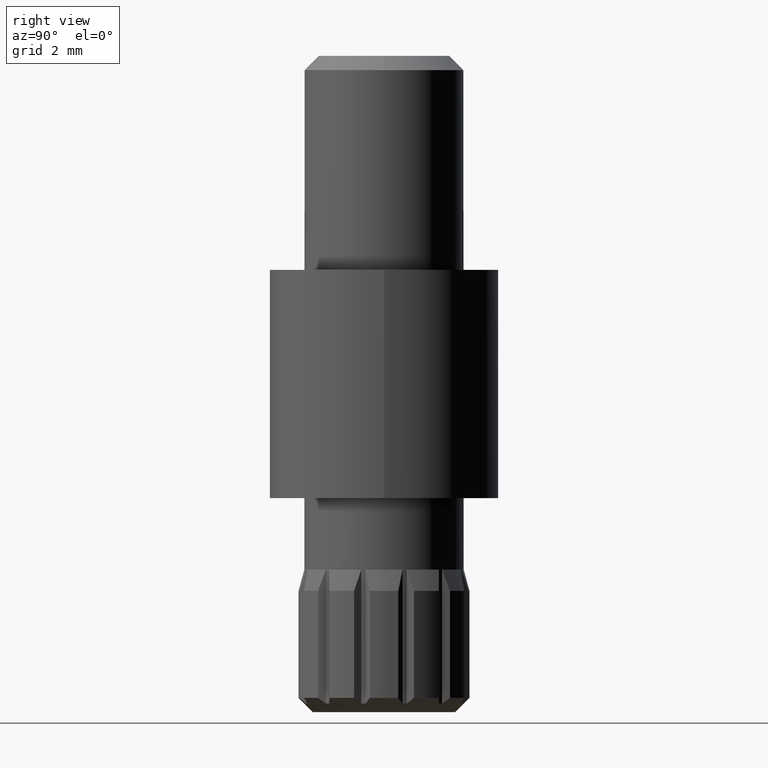
[diagram: clean part render]
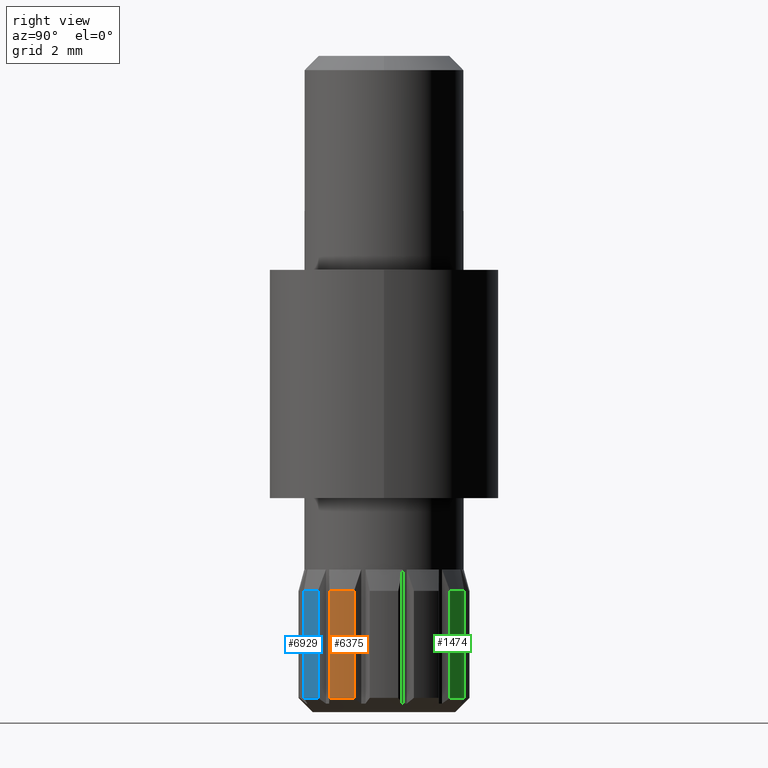
[diagram: same view with three faces highlighted in distinct colors, each labeled with its STEP entity id]
A machine part, right view with three faces highlighted in distinct colors.
Their STEP definitions:

[orange] entity #6375 — the highlighted cylindrical surface (partial cylindrical patch) has radius 3 mm, axis along (0, 0, -1).
#319 = AXIS2_PLACEMENT_3D ( 'NONE', #12026, #1212, #1081 ) ;
#549 = EDGE_CURVE ( 'NONE', #8342, #8471, #11567, .T. ) ;
#855 = CARTESIAN_POINT ( 'NONE',  ( 2.811737691489895496, -1.046007243882698390, 4.250000000000000000 ) ) ;
#950 = AXIS2_PLACEMENT_3D ( 'NONE', #3037, #5021, #6015 ) ;
#1081 = DIRECTION ( 'NONE',  ( -1.000000000000000000, 0.000000000000000000, 0.000000000000000000 ) ) ;
#1212 = DIRECTION ( 'NONE',  ( -0.000000000000000000, -0.000000000000000000, -1.000000000000000000 ) ) ;
#1364 = DIRECTION ( 'NONE',  ( 0.000000000000000000, 0.000000000000000000, -1.000000000000000000 ) ) ;
#1702 = ORIENTED_EDGE ( 'NONE', *, *, #549, .T. ) ;
#2190 = CYLINDRICAL_SURFACE ( 'NONE', #10973, 3.000000000000000444 ) ;
#2592 = VECTOR ( 'NONE', #1364, 1000.000000000000000 ) ;
#3037 = CARTESIAN_POINT ( 'NONE',  ( 0.000000000000000000, 0.000000000000000000, 4.250000000000000000 ) ) ;
#3440 = EDGE_CURVE ( 'NONE', #8342, #10463, #3991, .T. ) ;
#3869 = EDGE_CURVE ( 'NONE', #10463, #10141, #12542, .T. ) ;
#3935 = DIRECTION ( 'NONE',  ( -1.000000000000000000, 0.000000000000000000, 0.000000000000000000 ) ) ;
#3991 = LINE ( 'NONE', #7115, #8147 ) ;
#4181 = CARTESIAN_POINT ( 'NONE',  ( 2.311737691489891056, -1.912032647667133878, 0.4999999999999998890 ) ) ;
#4668 = ORIENTED_EDGE ( 'NONE', *, *, #3440, .F. ) ;
#4909 = CARTESIAN_POINT ( 'NONE',  ( 0.000000000000000000, 0.000000000000000000, 5.000000000000000000 ) ) ;
#5007 = CARTESIAN_POINT ( 'NONE',  ( 2.311737691489891944, -1.912032647667134766, 4.250000000000000000 ) ) ;
#5021 = DIRECTION ( 'NONE',  ( -0.000000000000000000, -0.000000000000000000, -1.000000000000000000 ) ) ;
#6015 = DIRECTION ( 'NONE',  ( -1.000000000000000000, 0.000000000000000000, 0.000000000000000000 ) ) ;
#6375 = ADVANCED_FACE ( 'NONE', ( #8039 ), #2190, .T. ) ;
#6383 = EDGE_LOOP ( 'NONE', ( #1702, #12623, #8981, #4668 ) ) ;
#7115 = CARTESIAN_POINT ( 'NONE',  ( 2.811737691489895496, -1.046007243882697946, 5.000000000000000000 ) ) ;
#7192 = EDGE_CURVE ( 'NONE', #8471, #10141, #12458, .T. ) ;
#7240 = CARTESIAN_POINT ( 'NONE',  ( 2.311737691489891944, -1.912032647667134544, 5.000000000000000000 ) ) ;
#8039 = FACE_OUTER_BOUND ( 'NONE', #6383, .T. ) ;
#8147 = VECTOR ( 'NONE', #10117, 1000.000000000000000 ) ;
#8342 = VERTEX_POINT ( 'NONE', #855 ) ;
#8471 = VERTEX_POINT ( 'NONE', #5007 ) ;
#8981 = ORIENTED_EDGE ( 'NONE', *, *, #3869, .F. ) ;
#9819 = CARTESIAN_POINT ( 'NONE',  ( 2.811737691489895052, -1.046007243882697058, 0.4999999999999998890 ) ) ;
#10117 = DIRECTION ( 'NONE',  ( 0.000000000000000000, 0.000000000000000000, -1.000000000000000000 ) ) ;
#10141 = VERTEX_POINT ( 'NONE', #4181 ) ;
#10463 = VERTEX_POINT ( 'NONE', #9819 ) ;
#10973 = AXIS2_PLACEMENT_3D ( 'NONE', #4909, #12666, #3935 ) ;
#11567 = CIRCLE ( 'NONE', #950, 3.000000000000000888 ) ;
#12026 = CARTESIAN_POINT ( 'NONE',  ( 0.000000000000000000, 0.000000000000000000, 0.4999999999999998890 ) ) ;
#12458 = LINE ( 'NONE', #7240, #2592 ) ;
#12542 = CIRCLE ( 'NONE', #319, 3.000000000000000000 ) ;
#12623 = ORIENTED_EDGE ( 'NONE', *, *, #7192, .T. ) ;
#12666 = DIRECTION ( 'NONE',  ( 0.000000000000000000, 0.000000000000000000, -1.000000000000000000 ) ) ;

[blue] entity #6929 — the highlighted cylindrical surface (partial cylindrical patch) has radius 3 mm, axis along (0, 0, -1).
#175 = EDGE_CURVE ( 'NONE', #11277, #3410, #6033, .T. ) ;
#268 = ORIENTED_EDGE ( 'NONE', *, *, #12739, .F. ) ;
#3218 = ORIENTED_EDGE ( 'NONE', *, *, #3549, .T. ) ;
#3403 = CARTESIAN_POINT ( 'NONE',  ( 0.000000000000000000, 0.000000000000000000, 4.250000000000000000 ) ) ;
#3410 = VERTEX_POINT ( 'NONE', #6251 ) ;
#3549 = EDGE_CURVE ( 'NONE', #3410, #10468, #11516, .T. ) ;
#3679 = LINE ( 'NONE', #9779, #10931 ) ;
#4534 = AXIS2_PLACEMENT_3D ( 'NONE', #9714, #10696, #11668 ) ;
#5140 = CARTESIAN_POINT ( 'NONE',  ( 1.912032647667110119, -2.311737691489911928, 4.250000000000000000 ) ) ;
#5602 = AXIS2_PLACEMENT_3D ( 'NONE', #12107, #12012, #9996 ) ;
#5699 = FACE_OUTER_BOUND ( 'NONE', #8576, .T. ) ;
#6033 = CIRCLE ( 'NONE', #7877, 3.000000000000000888 ) ;
#6177 = ORIENTED_EDGE ( 'NONE', *, *, #175, .T. ) ;
#6251 = CARTESIAN_POINT ( 'NONE',  ( 1.046007243882668636, -2.811737691489906599, 4.250000000000000000 ) ) ;
#6355 = DIRECTION ( 'NONE',  ( -0.000000000000000000, -0.000000000000000000, -1.000000000000000000 ) ) ;
#6498 = CARTESIAN_POINT ( 'NONE',  ( 1.046007243882668414, -2.811737691489906155, 5.000000000000000000 ) ) ;
#6929 = ADVANCED_FACE ( 'NONE', ( #5699 ), #8330, .T. ) ;
#7312 = EDGE_CURVE ( 'NONE', #11277, #10584, #3679, .T. ) ;
#7877 = AXIS2_PLACEMENT_3D ( 'NONE', #3403, #6355, #9359 ) ;
#8330 = CYLINDRICAL_SURFACE ( 'NONE', #5602, 3.000000000000000444 ) ;
#8576 = EDGE_LOOP ( 'NONE', ( #6177, #3218, #268, #11900 ) ) ;
#9359 = DIRECTION ( 'NONE',  ( -1.000000000000000000, 0.000000000000000000, 0.000000000000000000 ) ) ;
#9714 = CARTESIAN_POINT ( 'NONE',  ( 0.000000000000000000, 0.000000000000000000, 0.4999999999999998890 ) ) ;
#9779 = CARTESIAN_POINT ( 'NONE',  ( 1.912032647667110119, -2.311737691489910596, 5.000000000000000000 ) ) ;
#9949 = CARTESIAN_POINT ( 'NONE',  ( 1.046007243882668414, -2.811737691489906155, 0.4999999999999998890 ) ) ;
#9996 = DIRECTION ( 'NONE',  ( -1.000000000000000000, 0.000000000000000000, 0.000000000000000000 ) ) ;
#10077 = CIRCLE ( 'NONE', #4534, 3.000000000000000000 ) ;
#10468 = VERTEX_POINT ( 'NONE', #9949 ) ;
#10584 = VERTEX_POINT ( 'NONE', #12181 ) ;
#10696 = DIRECTION ( 'NONE',  ( -0.000000000000000000, -0.000000000000000000, -1.000000000000000000 ) ) ;
#10931 = VECTOR ( 'NONE', #11604, 1000.000000000000000 ) ;
#11211 = VECTOR ( 'NONE', #12618, 1000.000000000000000 ) ;
#11277 = VERTEX_POINT ( 'NONE', #5140 ) ;
#11516 = LINE ( 'NONE', #6498, #11211 ) ;
#11604 = DIRECTION ( 'NONE',  ( 0.000000000000000000, 0.000000000000000000, -1.000000000000000000 ) ) ;
#11668 = DIRECTION ( 'NONE',  ( -1.000000000000000000, 0.000000000000000000, 0.000000000000000000 ) ) ;
#11900 = ORIENTED_EDGE ( 'NONE', *, *, #7312, .F. ) ;
#12012 = DIRECTION ( 'NONE',  ( 0.000000000000000000, 0.000000000000000000, -1.000000000000000000 ) ) ;
#12107 = CARTESIAN_POINT ( 'NONE',  ( 0.000000000000000000, 0.000000000000000000, 5.000000000000000000 ) ) ;
#12181 = CARTESIAN_POINT ( 'NONE',  ( 1.912032647667110119, -2.311737691489910596, 0.4999999999999998890 ) ) ;
#12618 = DIRECTION ( 'NONE',  ( 0.000000000000000000, 0.000000000000000000, -1.000000000000000000 ) ) ;
#12739 = EDGE_CURVE ( 'NONE', #10584, #10468, #10077, .T. ) ;

[green] entity #1474 — the highlighted cylindrical surface (partial cylindrical patch) has radius 3 mm, axis along (0, 0, -1).
#995 = CARTESIAN_POINT ( 'NONE',  ( 1.046007243882687288, 2.811737691489899049, 0.4999999999999998890 ) ) ;
#1474 = ADVANCED_FACE ( 'NONE', ( #3816 ), #10316, .T. ) ;
#2019 = AXIS2_PLACEMENT_3D ( 'NONE', #8187, #3228, #10990 ) ;
#2295 = LINE ( 'NONE', #7659, #10014 ) ;
#2454 = CIRCLE ( 'NONE', #2019, 3.000000000000000000 ) ;
#2649 = VERTEX_POINT ( 'NONE', #9992 ) ;
#2767 = ORIENTED_EDGE ( 'NONE', *, *, #9245, .T. ) ;
#2835 = EDGE_CURVE ( 'NONE', #12628, #2649, #2295, .T. ) ;
#2894 = CARTESIAN_POINT ( 'NONE',  ( 0.000000000000000000, 0.000000000000000000, 4.250000000000000000 ) ) ;
#2972 = CARTESIAN_POINT ( 'NONE',  ( 0.000000000000000000, 0.000000000000000000, 5.000000000000000000 ) ) ;
#3228 = DIRECTION ( 'NONE',  ( -0.000000000000000000, -0.000000000000000000, -1.000000000000000000 ) ) ;
#3292 = CARTESIAN_POINT ( 'NONE',  ( 1.046007243882688176, 2.811737691489898605, 5.000000000000000000 ) ) ;
#3816 = FACE_OUTER_BOUND ( 'NONE', #10221, .T. ) ;
#4304 = AXIS2_PLACEMENT_3D ( 'NONE', #2894, #11736, #8739 ) ;
#4828 = DIRECTION ( 'NONE',  ( 0.000000000000000000, 0.000000000000000000, -1.000000000000000000 ) ) ;
#5279 = DIRECTION ( 'NONE',  ( 0.000000000000000000, 0.000000000000000000, -1.000000000000000000 ) ) ;
#5418 = VECTOR ( 'NONE', #5279, 1000.000000000000000 ) ;
#6175 = EDGE_CURVE ( 'NONE', #6432, #9667, #9134, .T. ) ;
#6432 = VERTEX_POINT ( 'NONE', #12749 ) ;
#7211 = ORIENTED_EDGE ( 'NONE', *, *, #10099, .F. ) ;
#7659 = CARTESIAN_POINT ( 'NONE',  ( 1.912032647667126328, 2.311737691489897717, 5.000000000000000000 ) ) ;
#8187 = CARTESIAN_POINT ( 'NONE',  ( 0.000000000000000000, 0.000000000000000000, 0.4999999999999998890 ) ) ;
#8739 = DIRECTION ( 'NONE',  ( -1.000000000000000000, 0.000000000000000000, 0.000000000000000000 ) ) ;
#9134 = LINE ( 'NONE', #3292, #5418 ) ;
#9245 = EDGE_CURVE ( 'NONE', #6432, #12628, #10539, .T. ) ;
#9667 = VERTEX_POINT ( 'NONE', #995 ) ;
#9992 = CARTESIAN_POINT ( 'NONE',  ( 1.912032647667126106, 2.311737691489897273, 0.4999999999999998890 ) ) ;
#10014 = VECTOR ( 'NONE', #4828, 1000.000000000000000 ) ;
#10099 = EDGE_CURVE ( 'NONE', #9667, #2649, #2454, .T. ) ;
#10221 = EDGE_LOOP ( 'NONE', ( #2767, #10429, #7211, #10821 ) ) ;
#10316 = CYLINDRICAL_SURFACE ( 'NONE', #12829, 3.000000000000000444 ) ;
#10429 = ORIENTED_EDGE ( 'NONE', *, *, #2835, .T. ) ;
#10539 = CIRCLE ( 'NONE', #4304, 3.000000000000000888 ) ;
#10821 = ORIENTED_EDGE ( 'NONE', *, *, #6175, .F. ) ;
#10990 = DIRECTION ( 'NONE',  ( -1.000000000000000000, 0.000000000000000000, 0.000000000000000000 ) ) ;
#11736 = DIRECTION ( 'NONE',  ( -0.000000000000000000, -0.000000000000000000, -1.000000000000000000 ) ) ;
#12434 = CARTESIAN_POINT ( 'NONE',  ( 1.912032647667126772, 2.311737691489898161, 4.250000000000000000 ) ) ;
#12628 = VERTEX_POINT ( 'NONE', #12434 ) ;
#12656 = DIRECTION ( 'NONE',  ( 0.000000000000000000, 0.000000000000000000, -1.000000000000000000 ) ) ;
#12740 = DIRECTION ( 'NONE',  ( -1.000000000000000000, 0.000000000000000000, 0.000000000000000000 ) ) ;
#12749 = CARTESIAN_POINT ( 'NONE',  ( 1.046007243882688620, 2.811737691489899493, 4.250000000000000000 ) ) ;
#12829 = AXIS2_PLACEMENT_3D ( 'NONE', #2972, #12656, #12740 ) ;